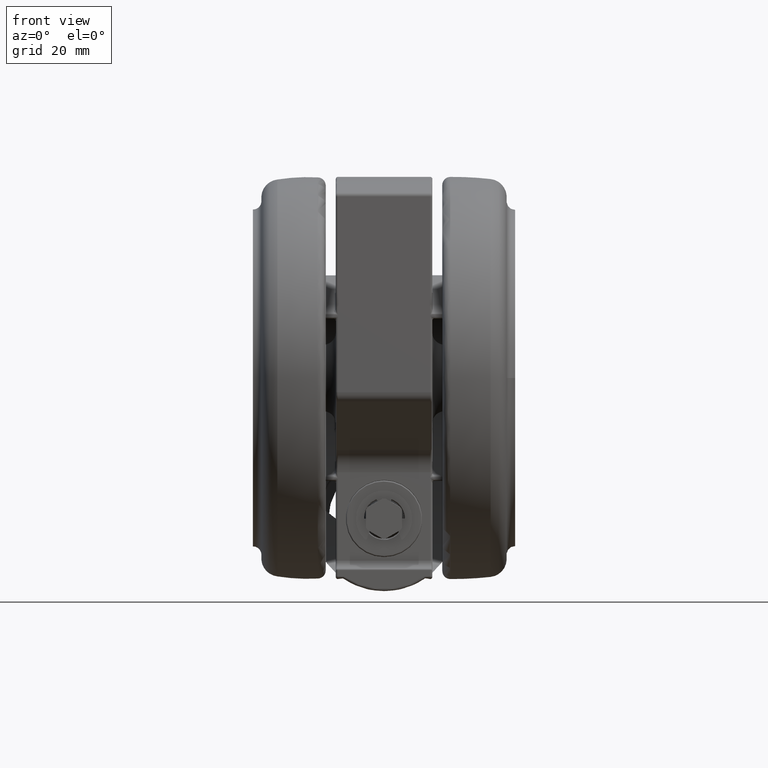
[diagram: clean part render]
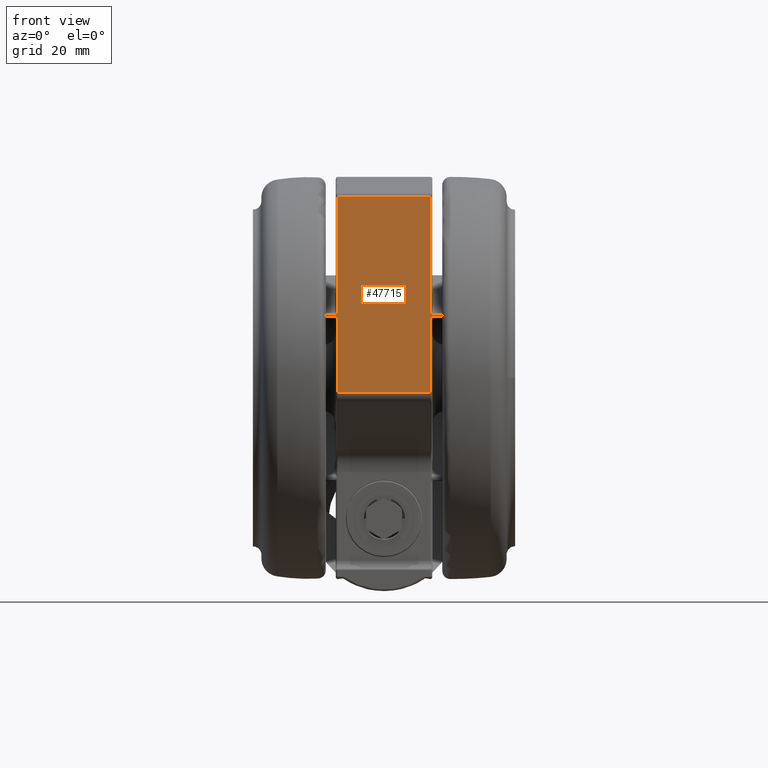
[diagram: same view with one face highlighted and labeled with its STEP entity id]
A machine part, front view. The second image highlights one B-rep face of the part: STEP entity #47715.
In plain terms, the highlighted planar face has unit normal (0, 1, 0).
Its self-contained STEP definition (entity closure, byte-faithful):
#816 = ORIENTED_EDGE ( 'NONE', *, *, #38532, .T. ) ;
#2729 = CARTESIAN_POINT ( 'NONE',  ( -20.00023896682628100, 15.72426468869033800, -50.60000000000000900 ) ) ;
#3715 = CARTESIAN_POINT ( 'NONE',  ( -20.00023896682607800, -3.518284766012640000, -44.10000000000001600 ) ) ;
#3875 = VERTEX_POINT ( 'NONE', #26726 ) ;
#4558 = LINE ( 'NONE', #67323, #46498 ) ;
#4653 = EDGE_CURVE ( 'NONE', #55904, #3875, #18576, .T. ) ;
#5386 = LINE ( 'NONE', #68530, #23099 ) ;
#5960 = CARTESIAN_POINT ( 'NONE',  ( -20.00023896682628100, 15.72426468869033800, -14.60000000000001200 ) ) ;
#6052 = LINE ( 'NONE', #21029, #20051 ) ;
#7161 = VERTEX_POINT ( 'NONE', #31179 ) ;
#7479 = ORIENTED_EDGE ( 'NONE', *, *, #74628, .T. ) ;
#7685 = DIRECTION ( 'NONE',  ( 1.049160758270772000E-014, -1.000000000000000000, 0.0000000000000000000 ) ) ;
#7983 = DIRECTION ( 'NONE',  ( -0.0000000000000000000, -0.0000000000000000000, 1.000000000000000000 ) ) ;
#8528 = DIRECTION ( 'NONE',  ( 1.000000000000000000, 1.049160758270772000E-014, 0.0000000000000000000 ) ) ;
#8839 = EDGE_CURVE ( 'NONE', #68713, #70179, #41495, .T. ) ;
#9829 = VECTOR ( 'NONE', #7685, 1000.000000000000000 ) ;
#11543 = ORIENTED_EDGE ( 'NONE', *, *, #22050, .T. ) ;
#13236 = CARTESIAN_POINT ( 'NONE',  ( -20.00023896682607800, -3.518284766012640000, -20.60000000000001200 ) ) ;
#13712 = ORIENTED_EDGE ( 'NONE', *, *, #21437, .T. ) ;
#14136 = CARTESIAN_POINT ( 'NONE',  ( -20.00023896682659000, 45.16635916254468700, -44.10000000000001600 ) ) ;
#15010 = LINE ( 'NONE', #32411, #77249 ) ;
#15548 = ORIENTED_EDGE ( 'NONE', *, *, #32173, .T. ) ;
#16706 = VECTOR ( 'NONE', #46336, 1000.000000000000000 ) ;
#17530 = EDGE_LOOP ( 'NONE', ( #816, #73060, #13712, #15548, #40673, #38244, #64386, #11543, #7479, #75526, #76634, #68390 ) ) ;
#17769 = CARTESIAN_POINT ( 'NONE',  ( -20.00023896682659000, 45.16635916254468700, -21.10000000000001200 ) ) ;
#18533 = VERTEX_POINT ( 'NONE', #17769 ) ;
#18576 = LINE ( 'NONE', #58311, #16706 ) ;
#19210 = DIRECTION ( 'NONE',  ( -0.0000000000000000000, -0.0000000000000000000, 1.000000000000000000 ) ) ;
#19405 = VECTOR ( 'NONE', #38646, 1000.000000000000000 ) ;
#19752 = CARTESIAN_POINT ( 'NONE',  ( -20.00023896682627400, 15.24180107467599000, -44.60000000000001600 ) ) ;
#20051 = VECTOR ( 'NONE', #68679, 1000.000000000000000 ) ;
#21029 = CARTESIAN_POINT ( 'NONE',  ( -20.00023896682659700, 45.82575694955819000, -14.60000000000001200 ) ) ;
#21126 = VECTOR ( 'NONE', #33436, 1000.000000000000000 ) ;
#21386 = LINE ( 'NONE', #41988, #65161 ) ;
#21437 = EDGE_CURVE ( 'NONE', #74428, #48869, #55084, .T. ) ;
#22050 = EDGE_CURVE ( 'NONE', #26994, #18533, #15010, .T. ) ;
#23099 = VECTOR ( 'NONE', #74482, 1000.000000000000000 ) ;
#25641 = VERTEX_POINT ( 'NONE', #37443 ) ;
#26726 = CARTESIAN_POINT ( 'NONE',  ( -20.00023896682627400, 15.24180107467599000, -14.60000000000001200 ) ) ;
#26844 = LINE ( 'NONE', #31713, #28699 ) ;
#26994 = VERTEX_POINT ( 'NONE', #39017 ) ;
#28699 = VECTOR ( 'NONE', #73309, 1000.000000000000000 ) ;
#31179 = CARTESIAN_POINT ( 'NONE',  ( -20.00023896682627400, 15.24180107467599000, -44.10000000000001600 ) ) ;
#31682 = DIRECTION ( 'NONE',  ( -1.049160758270772000E-014, 1.000000000000000000, -0.0000000000000000000 ) ) ;
#31713 = CARTESIAN_POINT ( 'NONE',  ( -20.00023896682628100, 15.72426468869033800, -50.60000000000000900 ) ) ;
#32173 = EDGE_CURVE ( 'NONE', #48869, #55904, #4558, .T. ) ;
#32256 = PLANE ( 'NONE',  #51409 ) ;
#32411 = CARTESIAN_POINT ( 'NONE',  ( -20.00023896682659000, 45.16635916254468700, -21.10000000000001200 ) ) ;
#32764 = LINE ( 'NONE', #19752, #62565 ) ;
#32829 = EDGE_CURVE ( 'NONE', #68178, #25641, #5386, .T. ) ;
#33436 = DIRECTION ( 'NONE',  ( 1.049160758270772000E-014, -1.000000000000000000, 0.0000000000000000000 ) ) ;
#34245 = EDGE_CURVE ( 'NONE', #35065, #26994, #35230, .T. ) ;
#35065 = VERTEX_POINT ( 'NONE', #5960 ) ;
#35230 = LINE ( 'NONE', #56672, #19405 ) ;
#37443 = CARTESIAN_POINT ( 'NONE',  ( -20.00023896682627400, 15.24180107467599000, -50.60000000000000900 ) ) ;
#38211 = CARTESIAN_POINT ( 'NONE',  ( -20.00023896682659700, 45.82575694955819000, -20.60000000000001200 ) ) ;
#38244 = ORIENTED_EDGE ( 'NONE', *, *, #73782, .T. ) ;
#38532 = EDGE_CURVE ( 'NONE', #25641, #7161, #32764, .T. ) ;
#38646 = DIRECTION ( 'NONE',  ( 0.0000000000000000000, 0.0000000000000000000, -1.000000000000000000 ) ) ;
#39017 = CARTESIAN_POINT ( 'NONE',  ( -20.00023896682628100, 15.72426468869033800, -21.10000000000001200 ) ) ;
#39388 = CARTESIAN_POINT ( 'NONE',  ( -20.00023896682659700, 45.82575694955819000, -44.10000000000001600 ) ) ;
#40673 = ORIENTED_EDGE ( 'NONE', *, *, #4653, .T. ) ;
#41495 = LINE ( 'NONE', #73059, #9829 ) ;
#41988 = CARTESIAN_POINT ( 'NONE',  ( -20.00023896682659000, 45.16635916254468700, -20.60000000000001200 ) ) ;
#44128 = CARTESIAN_POINT ( 'NONE',  ( -20.00023896682627400, 15.24180107467599000, -21.10000000000001200 ) ) ;
#46336 = DIRECTION ( 'NONE',  ( -0.0000000000000000000, -0.0000000000000000000, 1.000000000000000000 ) ) ;
#46498 = VECTOR ( 'NONE', #31682, 1000.000000000000000 ) ;
#47715 = ADVANCED_FACE ( 'NONE', ( #49113 ), #32256, .F. ) ;
#47967 = DIRECTION ( 'NONE',  ( 0.0000000000000000000, 0.0000000000000000000, -1.000000000000000000 ) ) ;
#48869 = VERTEX_POINT ( 'NONE', #70818 ) ;
#49113 = FACE_OUTER_BOUND ( 'NONE', #17530, .T. ) ;
#50228 = DIRECTION ( 'NONE',  ( -1.049160758270772000E-014, 1.000000000000000000, 0.0000000000000000000 ) ) ;
#51409 = AXIS2_PLACEMENT_3D ( 'NONE', #38211, #8528, #50228 ) ;
#52822 = LINE ( 'NONE', #39388, #21126 ) ;
#55084 = LINE ( 'NONE', #13236, #65268 ) ;
#55904 = VERTEX_POINT ( 'NONE', #44128 ) ;
#56672 = CARTESIAN_POINT ( 'NONE',  ( -20.00023896682628100, 15.72426468869033800, -20.60000000000001200 ) ) ;
#56990 = EDGE_CURVE ( 'NONE', #70179, #68178, #26844, .T. ) ;
#57571 = EDGE_CURVE ( 'NONE', #7161, #74428, #52822, .T. ) ;
#58311 = CARTESIAN_POINT ( 'NONE',  ( -20.00023896682627400, 15.24180107467599000, -20.60000000000001200 ) ) ;
#62565 = VECTOR ( 'NONE', #7983, 1000.000000000000000 ) ;
#64386 = ORIENTED_EDGE ( 'NONE', *, *, #34245, .T. ) ;
#65161 = VECTOR ( 'NONE', #47967, 1000.000000000000000 ) ;
#65268 = VECTOR ( 'NONE', #19210, 1000.000000000000000 ) ;
#67261 = CARTESIAN_POINT ( 'NONE',  ( -20.00023896682628100, 15.72426468869033800, -44.10000000000001600 ) ) ;
#67323 = CARTESIAN_POINT ( 'NONE',  ( -20.00023896682627400, 15.24180107467599000, -21.10000000000001200 ) ) ;
#68178 = VERTEX_POINT ( 'NONE', #2729 ) ;
#68390 = ORIENTED_EDGE ( 'NONE', *, *, #32829, .T. ) ;
#68530 = CARTESIAN_POINT ( 'NONE',  ( -20.00023896682659700, 45.82575694955819000, -50.60000000000000900 ) ) ;
#68679 = DIRECTION ( 'NONE',  ( -1.049160758270772000E-014, 1.000000000000000000, -0.0000000000000000000 ) ) ;
#68713 = VERTEX_POINT ( 'NONE', #14136 ) ;
#70179 = VERTEX_POINT ( 'NONE', #67261 ) ;
#70818 = CARTESIAN_POINT ( 'NONE',  ( -20.00023896682607800, -3.518284766012640000, -21.10000000000001200 ) ) ;
#73059 = CARTESIAN_POINT ( 'NONE',  ( -20.00023896682659700, 45.82575694955819000, -44.10000000000001600 ) ) ;
#73060 = ORIENTED_EDGE ( 'NONE', *, *, #57571, .T. ) ;
#73309 = DIRECTION ( 'NONE',  ( 0.0000000000000000000, 0.0000000000000000000, -1.000000000000000000 ) ) ;
#73782 = EDGE_CURVE ( 'NONE', #3875, #35065, #6052, .T. ) ;
#74019 = DIRECTION ( 'NONE',  ( -1.049160758270772000E-014, 1.000000000000000000, -0.0000000000000000000 ) ) ;
#74428 = VERTEX_POINT ( 'NONE', #3715 ) ;
#74482 = DIRECTION ( 'NONE',  ( 1.049160758270772000E-014, -1.000000000000000000, 0.0000000000000000000 ) ) ;
#74628 = EDGE_CURVE ( 'NONE', #18533, #68713, #21386, .T. ) ;
#75526 = ORIENTED_EDGE ( 'NONE', *, *, #8839, .T. ) ;
#76634 = ORIENTED_EDGE ( 'NONE', *, *, #56990, .T. ) ;
#77249 = VECTOR ( 'NONE', #74019, 1000.000000000000000 ) ;